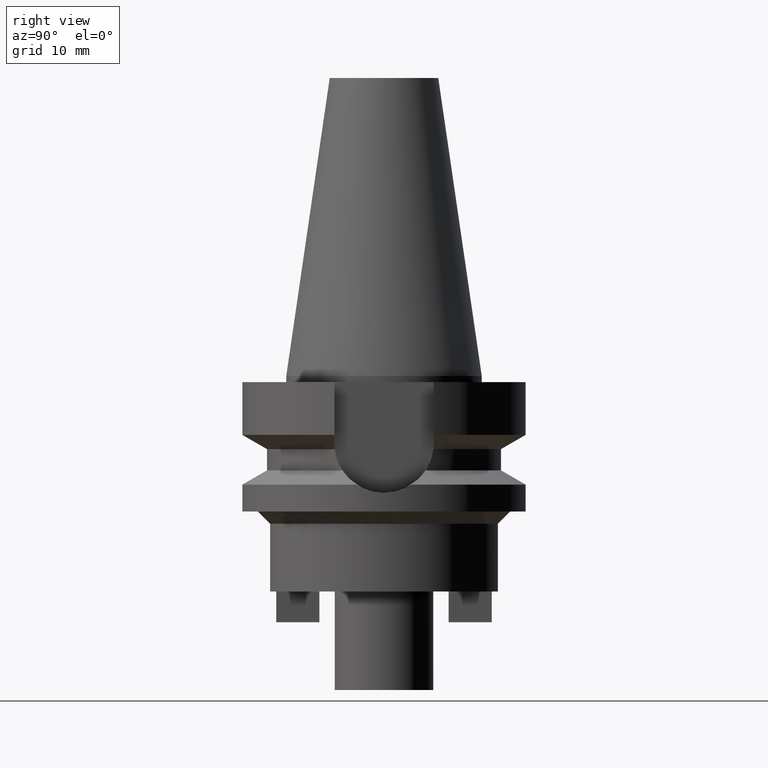
[diagram: clean part render]
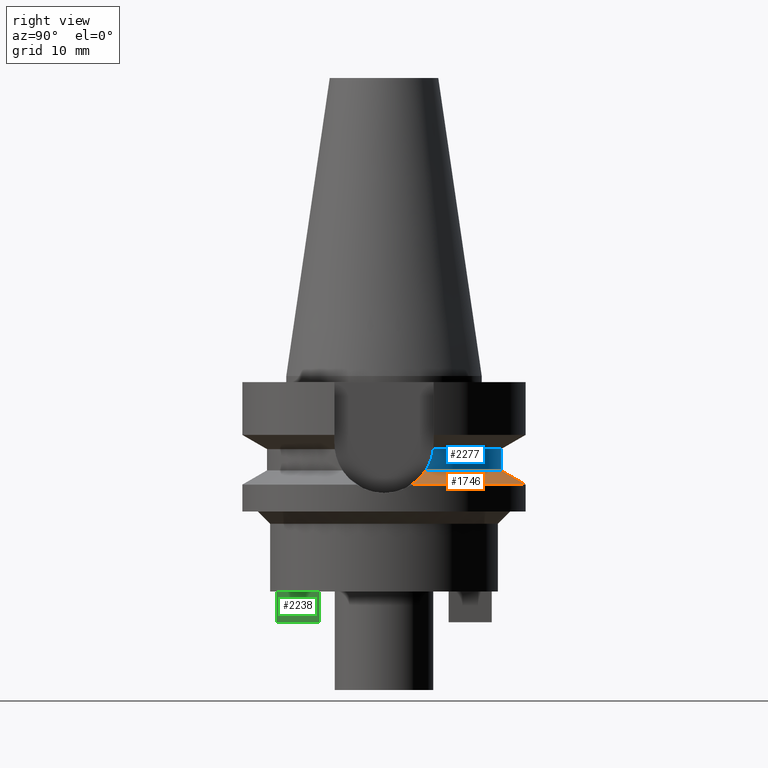
[diagram: same view with three faces highlighted in distinct colors, each labeled with its STEP entity id]
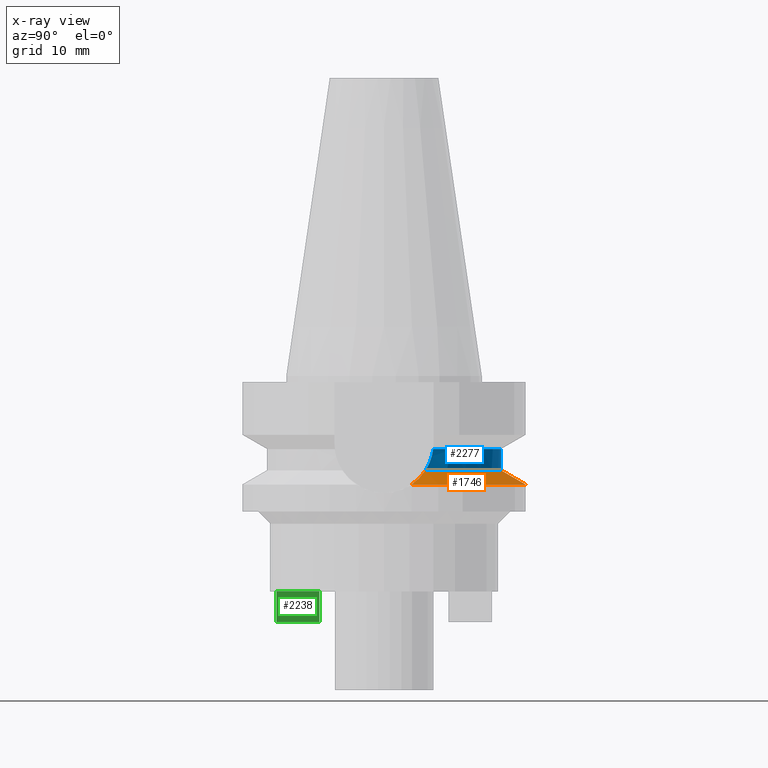
[diagram: x-ray of the same camera — body ghosted, the three highlighted faces saturated]
A machine part, right view with three faces highlighted in distinct colors.
The next image is the same camera in x-ray (body ghosted, the three faces saturated) — at least one of them is partly hidden behind the body in this view.
Their STEP definitions:

[orange] entity #1746 — the highlighted conical surface has half-angle 60 deg.
#533=CARTESIAN_POINT('',(2.255786346208E1,4.488072640470E0,-1.763279163029E1));
#545=CARTESIAN_POINT('',(-1.775736593456E1,6.758398853744E0,-1.532339055353E1));
#546=CARTESIAN_POINT('',(-1.829648950035E1,6.592234464183E0,-1.558017192400E1));
#547=CARTESIAN_POINT('',(-1.930162173299E1,6.239319495266E0,-1.606102822159E1));
#548=CARTESIAN_POINT('',(-2.058405986500E1,5.675392655948E0,-1.667801626431E1));
#549=CARTESIAN_POINT('',(-2.167070425937E1,5.089199871924E0,-1.720288920462E1));
#550=CARTESIAN_POINT('',(-2.228123447179E1,4.687807727531E0,-1.749865224227E1));
#551=CARTESIAN_POINT('',(-2.255786346208E1,4.488072640470E0,-1.763279163029E1));
#556=CARTESIAN_POINT('',(0.E0,1.022848384030E-14,-1.763279163029E1));
#557=DIRECTION('',(0.E0,0.E0,-1.E0));
#558=DIRECTION('',(-9.807766722644E-1,1.951335930639E-1,0.E0));
#559=AXIS2_PLACEMENT_3D('',#556,#557,#558);
#564=CARTESIAN_POINT('',(0.E0,1.022848384030E-14,-1.763279163029E1));
#565=DIRECTION('',(0.E0,0.E0,-1.E0));
#566=DIRECTION('',(0.E0,1.E0,0.E0));
#567=AXIS2_PLACEMENT_3D('',#564,#565,#566);
#572=CARTESIAN_POINT('',(2.255786346208E1,4.488072640470E0,-1.763279163029E1));
#573=CARTESIAN_POINT('',(2.228124021656E1,4.687803579614E0,-1.749865502795E1));
#574=CARTESIAN_POINT('',(2.167072254098E1,5.089187698271E0,-1.720289806546E1));
#575=CARTESIAN_POINT('',(2.058412252282E1,5.675361237609E0,-1.667804649385E1));
#576=CARTESIAN_POINT('',(1.930169012599E1,6.239293591546E0,-1.606106101781E1));
#577=CARTESIAN_POINT('',(1.829651899752E1,6.592225372800E0,-1.558018597333E1));
#578=CARTESIAN_POINT('',(1.775736593456E1,6.758398853744E0,-1.532339055353E1));
#583=CARTESIAN_POINT('',(0.E0,1.022848384030E-14,-1.532339055353E1));
#584=DIRECTION('',(0.E0,0.E0,1.E0));
#585=DIRECTION('',(9.345982070819E-1,3.557052028286E-1,0.E0));
#586=AXIS2_PLACEMENT_3D('',#583,#584,#585);
#591=CARTESIAN_POINT('',(0.E0,1.022848384030E-14,-1.532339055353E1));
#592=DIRECTION('',(0.E0,0.E0,1.E0));
#593=DIRECTION('',(0.E0,1.E0,0.E0));
#594=AXIS2_PLACEMENT_3D('',#591,#592,#593);
#1163=CARTESIAN_POINT('',(1.775736593456E1,6.758398853744E0,-1.532339055353E1));
#1258=VERTEX_POINT('',#533);
#1260=CARTESIAN_POINT('',(0.E0,2.3E1,-1.763279163029E1));
#1261=VERTEX_POINT('',#1260);
#1276=VERTEX_POINT('',#1163);
#1281=VERTEX_POINT('',#545);
#1282=VERTEX_POINT('',#551);
#1283=CARTESIAN_POINT('',(0.E0,1.9E1,-1.532339055353E1));
#1284=VERTEX_POINT('',#1283);
#1730=CARTESIAN_POINT('',(0.E0,1.022848384030E-14,-1.647809109191E1));
#1731=DIRECTION('',(0.E0,0.E0,-1.E0));
#1732=DIRECTION('',(0.E0,-1.E0,0.E0));
#1733=AXIS2_PLACEMENT_3D('',#1730,#1731,#1732);
#1734=CONICAL_SURFACE('',#1733,2.1E1,6.E1);
#1735=ORIENTED_EDGE('',*,*,#1638,.T.);
#1737=ORIENTED_EDGE('',*,*,#1736,.T.);
#1738=ORIENTED_EDGE('',*,*,#1718,.T.);
#1739=ORIENTED_EDGE('',*,*,#1706,.T.);
#1741=ORIENTED_EDGE('',*,*,#1740,.T.);
#1743=ORIENTED_EDGE('',*,*,#1742,.T.);
#1744=EDGE_LOOP('',(#1735,#1737,#1738,#1739,#1741,#1743));
#1745=FACE_OUTER_BOUND('',#1744,.F.);
#552=B_SPLINE_CURVE_WITH_KNOTS('',3,(#545,#546,#547,#548,#549,#550,#551),
.UNSPECIFIED.,.F.,.F.,(4,1,1,1,4),(0.E0,2.5E-1,5.E-1,7.5E-1,1.E0),
.UNSPECIFIED.);
#560=CIRCLE('',#559,2.3E1);
#568=CIRCLE('',#567,2.3E1);
#579=B_SPLINE_CURVE_WITH_KNOTS('',3,(#572,#573,#574,#575,#576,#577,#578),
.UNSPECIFIED.,.F.,.F.,(4,1,1,1,4),(0.E0,2.5E-1,5.E-1,7.5E-1,1.E0),
.UNSPECIFIED.);
#587=CIRCLE('',#586,1.9E1);
#595=CIRCLE('',#594,1.9E1);
#1638=EDGE_CURVE('',#1281,#1282,#552,.T.);
#1706=EDGE_CURVE('',#1258,#1276,#579,.T.);
#1718=EDGE_CURVE('',#1261,#1258,#568,.T.);
#1736=EDGE_CURVE('',#1282,#1261,#560,.T.);
#1740=EDGE_CURVE('',#1276,#1284,#587,.T.);
#1742=EDGE_CURVE('',#1284,#1281,#595,.T.);
#1746=ADVANCED_FACE('',(#1745),#1734,.T.);

[blue] entity #2277 — the highlighted cylindrical surface (partial cylindrical patch) has radius 19 mm, axis along (0, 0, -1).
#350=CARTESIAN_POINT('',(0.E0,1.093341284897E-14,-1.187660944647E1));
#351=DIRECTION('',(0.E0,0.E0,-1.E0));
#352=DIRECTION('',(-9.071218755694E-1,4.208680349747E-1,0.E0));
#353=AXIS2_PLACEMENT_3D('',#350,#351,#352);
#358=CARTESIAN_POINT('',(0.E0,1.093341284897E-14,-1.187660944647E1));
#359=DIRECTION('',(0.E0,0.E0,-1.E0));
#360=DIRECTION('',(0.E0,1.E0,0.E0));
#361=AXIS2_PLACEMENT_3D('',#358,#359,#360);
#366=CARTESIAN_POINT('',(1.723531622907E1,7.996491146279E0,-1.187660607780E1));
#545=CARTESIAN_POINT('',(-1.775736593456E1,6.758398853744E0,-1.532339055353E1));
#583=CARTESIAN_POINT('',(0.E0,1.022848384030E-14,-1.532339055353E1));
#584=DIRECTION('',(0.E0,0.E0,1.E0));
#585=DIRECTION('',(9.345982070819E-1,3.557052028286E-1,0.E0));
#586=AXIS2_PLACEMENT_3D('',#583,#584,#585);
#591=CARTESIAN_POINT('',(0.E0,1.022848384030E-14,-1.532339055353E1));
#592=DIRECTION('',(0.E0,0.E0,1.E0));
#593=DIRECTION('',(0.E0,1.E0,0.E0));
#594=AXIS2_PLACEMENT_3D('',#591,#592,#593);
#1153=CARTESIAN_POINT('',(-1.723531135312E1,7.996501749183E0,
-1.187660739351E1));
#1154=CARTESIAN_POINT('',(-1.725678232494E1,7.950224088234E0,
-1.227597896308E1));
#1155=CARTESIAN_POINT('',(-1.732662308205E1,7.799182282686E0,
-1.306421904257E1));
#1156=CARTESIAN_POINT('',(-1.750810985681E1,7.386689473333E0,
-1.422927357649E1));
#1157=CARTESIAN_POINT('',(-1.766906066291E1,6.990416681709E0,
-1.496484287676E1));
#1158=CARTESIAN_POINT('',(-1.775736593456E1,6.758398853744E0,
-1.532339055353E1));
#1163=CARTESIAN_POINT('',(1.775736593456E1,6.758398853744E0,-1.532339055353E1));
#1164=CARTESIAN_POINT('',(1.766900291694E1,6.990568406455E0,-1.496460840963E1));
#1165=CARTESIAN_POINT('',(1.750799178902E1,7.386969126479E0,-1.422867820446E1));
#1166=CARTESIAN_POINT('',(1.732654360555E1,7.799355478849E0,-1.306354745993E1));
#1167=CARTESIAN_POINT('',(1.725677127715E1,7.950247806710E0,-1.227568318012E1));
#1168=CARTESIAN_POINT('',(1.723531622907E1,7.996491146279E0,-1.187660607780E1));
#1275=VERTEX_POINT('',#366);
#1276=VERTEX_POINT('',#1163);
#1281=VERTEX_POINT('',#545);
#1283=CARTESIAN_POINT('',(0.E0,1.9E1,-1.532339055353E1));
#1284=VERTEX_POINT('',#1283);
#1285=VERTEX_POINT('',#1153);
#1298=CARTESIAN_POINT('',(0.E0,1.9E1,-1.187660944647E1));
#1299=VERTEX_POINT('',#1298);
#2264=CARTESIAN_POINT('',(0.E0,1.878240795852E-14,5.337E1));
#2265=DIRECTION('',(0.E0,0.E0,-1.E0));
#2266=DIRECTION('',(0.E0,-1.E0,0.E0));
#2267=AXIS2_PLACEMENT_3D('',#2264,#2265,#2266);
#2268=CYLINDRICAL_SURFACE('',#2267,1.9E1);
#2269=ORIENTED_EDGE('',*,*,#1640,.T.);
#2270=ORIENTED_EDGE('',*,*,#1742,.F.);
#2271=ORIENTED_EDGE('',*,*,#1740,.F.);
#2272=ORIENTED_EDGE('',*,*,#1704,.T.);
#2273=ORIENTED_EDGE('',*,*,#1588,.F.);
#2274=ORIENTED_EDGE('',*,*,#1586,.F.);
#2275=EDGE_LOOP('',(#2269,#2270,#2271,#2272,#2273,#2274));
#2276=FACE_OUTER_BOUND('',#2275,.F.);
#354=CIRCLE('',#353,1.9E1);
#362=CIRCLE('',#361,1.9E1);
#587=CIRCLE('',#586,1.9E1);
#595=CIRCLE('',#594,1.9E1);
#1159=B_SPLINE_CURVE_WITH_KNOTS('',3,(#1153,#1154,#1155,#1156,#1157,#1158),
.UNSPECIFIED.,.F.,.F.,(4,1,1,4),(0.E0,3.333333333333E-1,6.666666666667E-1,1.E0),
.UNSPECIFIED.);
#1169=B_SPLINE_CURVE_WITH_KNOTS('',3,(#1163,#1164,#1165,#1166,#1167,#1168),
.UNSPECIFIED.,.F.,.F.,(4,1,1,4),(0.E0,3.333333333333E-1,6.666666666667E-1,1.E0),
.UNSPECIFIED.);
#1586=EDGE_CURVE('',#1285,#1299,#354,.T.);
#1588=EDGE_CURVE('',#1299,#1275,#362,.T.);
#1640=EDGE_CURVE('',#1285,#1281,#1159,.T.);
#1704=EDGE_CURVE('',#1276,#1275,#1169,.T.);
#1740=EDGE_CURVE('',#1276,#1284,#587,.T.);
#1742=EDGE_CURVE('',#1284,#1281,#595,.T.);
#2277=ADVANCED_FACE('',(#2276),#2268,.T.);

[green] entity #2238 — the highlighted planar face has unit normal (-1, 0, 0).
#748=DIRECTION('',(0.E0,-1.E0,0.E0));
#749=VECTOR('',#748,7.E0);
#750=CARTESIAN_POINT('',(4.E0,-1.05E1,-3.5E1));
#751=LINE('',#750,#749);
#1118=DIRECTION('',(0.E0,0.E0,-1.E0));
#1119=VECTOR('',#1118,5.E0);
#1120=CARTESIAN_POINT('',(4.E0,-1.75E1,-3.5E1));
#1121=LINE('',#1120,#1119);
#1132=DIRECTION('',(0.E0,0.E0,1.E0));
#1133=VECTOR('',#1132,5.E0);
#1134=CARTESIAN_POINT('',(4.E0,-1.05E1,-4.E1));
#1135=LINE('',#1134,#1133);
#1139=DIRECTION('',(0.E0,1.E0,0.E0));
#1140=VECTOR('',#1139,7.E0);
#1141=CARTESIAN_POINT('',(4.E0,-1.75E1,-4.E1));
#1142=LINE('',#1141,#1140);
#1241=CARTESIAN_POINT('',(4.E0,-1.05E1,-3.5E1));
#1242=VERTEX_POINT('',#1241);
#1243=CARTESIAN_POINT('',(4.E0,-1.75E1,-3.5E1));
#1244=VERTEX_POINT('',#1243);
#1349=CARTESIAN_POINT('',(4.E0,-1.75E1,-4.E1));
#1350=VERTEX_POINT('',#1349);
#1351=CARTESIAN_POINT('',(4.E0,-1.05E1,-4.E1));
#1352=VERTEX_POINT('',#1351);
#2225=CARTESIAN_POINT('',(4.E0,2.535885447126E-14,0.E0));
#2226=DIRECTION('',(-1.E0,0.E0,0.E0));
#2227=DIRECTION('',(0.E0,0.E0,1.E0));
#2228=AXIS2_PLACEMENT_3D('',#2225,#2226,#2227);
#2229=PLANE('',#2228);
#2230=ORIENTED_EDGE('',*,*,#1863,.F.);
#2232=ORIENTED_EDGE('',*,*,#2231,.F.);
#2234=ORIENTED_EDGE('',*,*,#2233,.F.);
#2235=ORIENTED_EDGE('',*,*,#2217,.F.);
#2236=EDGE_LOOP('',(#2230,#2232,#2234,#2235));
#2237=FACE_OUTER_BOUND('',#2236,.F.);
#1863=EDGE_CURVE('',#1242,#1244,#751,.T.);
#2217=EDGE_CURVE('',#1244,#1350,#1121,.T.);
#2231=EDGE_CURVE('',#1352,#1242,#1135,.T.);
#2233=EDGE_CURVE('',#1350,#1352,#1142,.T.);
#2238=ADVANCED_FACE('',(#2237),#2229,.F.);